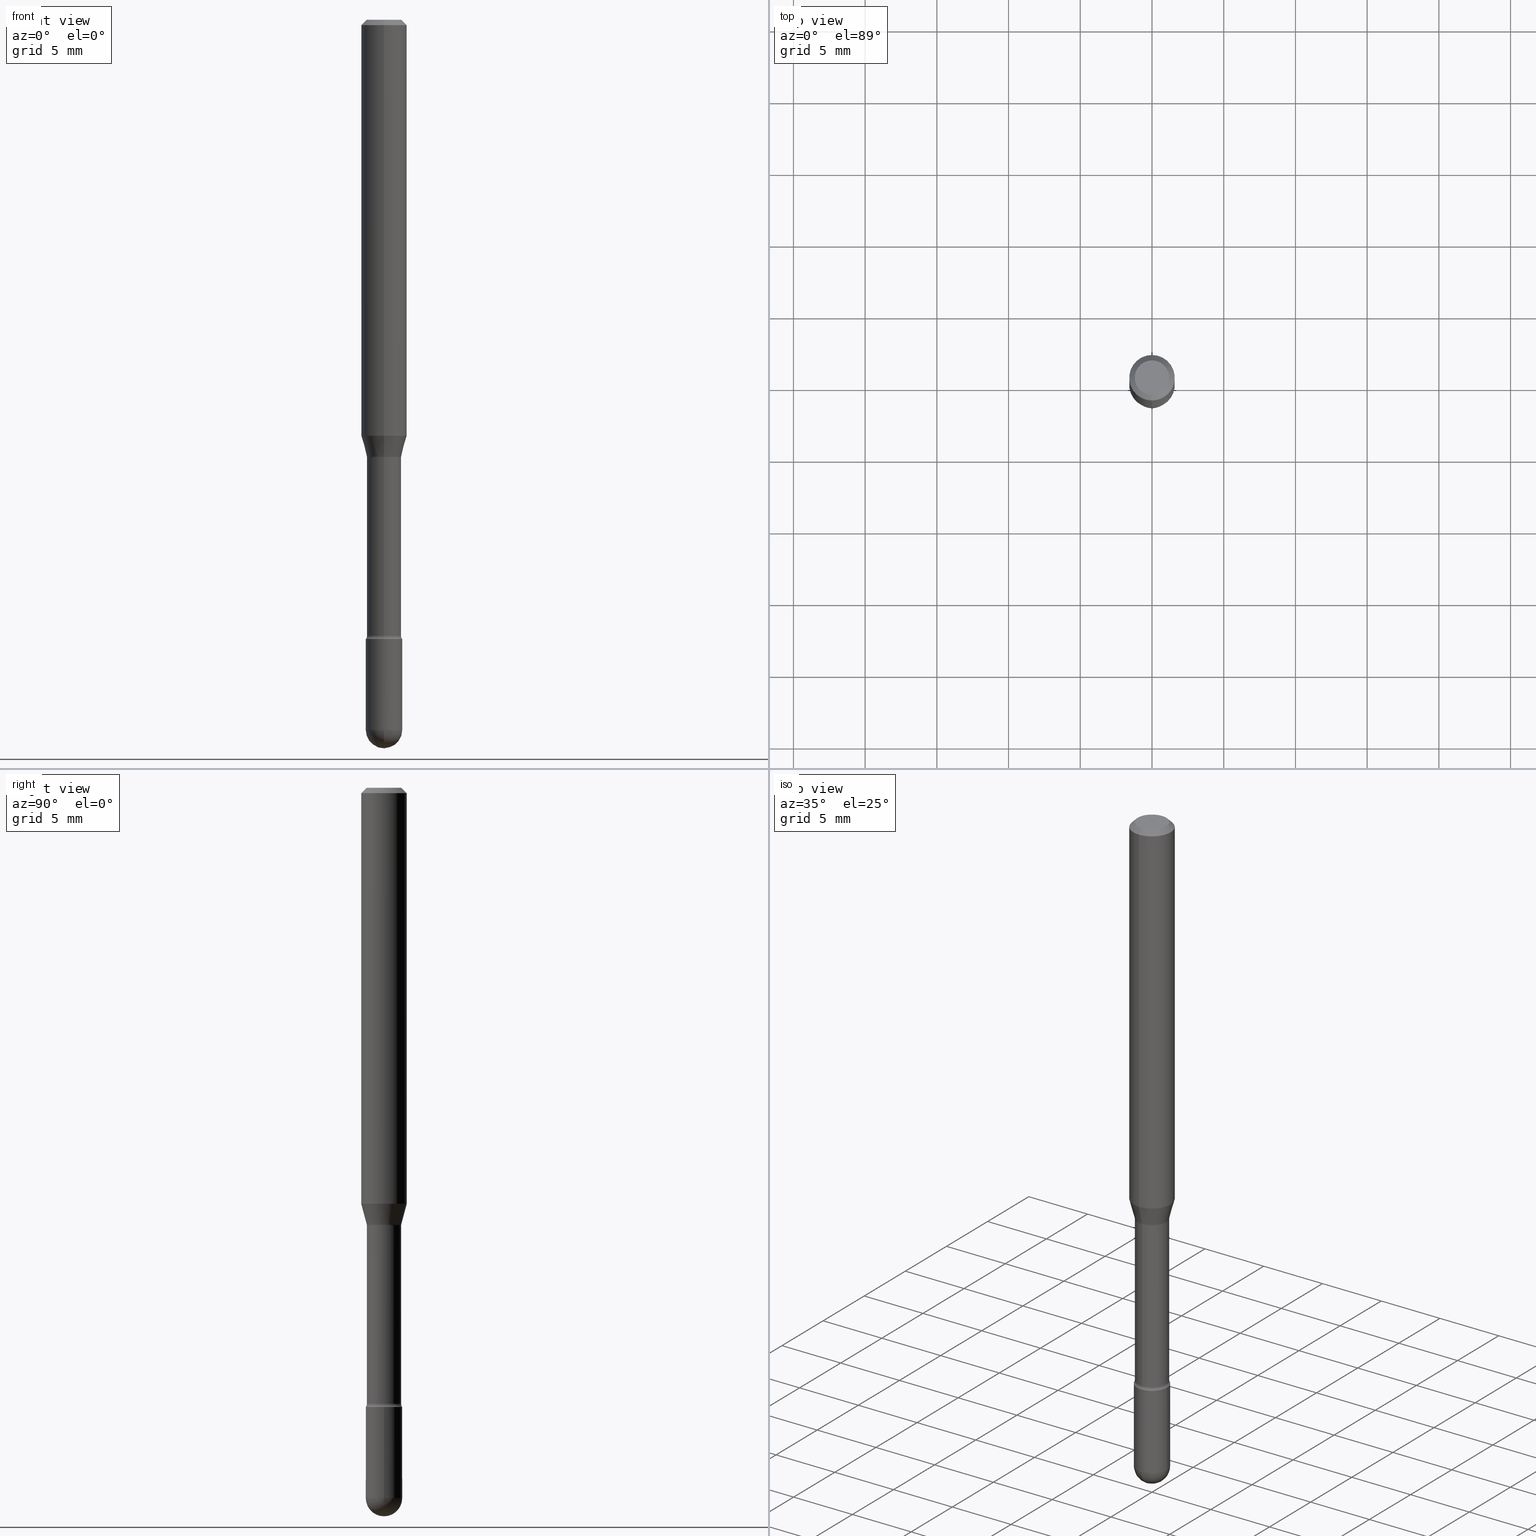
[diagram: canonical four-view strip — front | top / right | iso, engineering-drawing reading convention]
A machine part, canonical four-view strip (front | top / right | iso — engineering-drawing reading convention). The complete STEP part file that produces these views, byte-faithful:
ISO-10303-21;
HEADER;
FILE_DESCRIPTION (( 'STEP AP203' ),
    '1' );
FILE_NAME ('01606.STEP',
    '2024-04-09T20:08:53',
    ( '' ),
    ( '' ),
    'SwSTEP 2.0',
    'SolidWorks 2023',
    '' );
FILE_SCHEMA (( 'CONFIG_CONTROL_DESIGN' ));
ENDSEC;

DATA;
#1 = ADVANCED_FACE ( 'NONE', ( #421 ), #276, .T. ) ;
#2 = APPROVAL_ROLE ( '' ) ;
#3 = DIRECTION ( 'NONE',  ( -2.445378392071588483E-29, 3.491610816999798488E-15, 1.000000000000000000 ) ) ;
#4 = CARTESIAN_POINT ( 'NONE',  ( 0.04999999999999999584, -3.491481338843132862E-16, 2.438088387897967896E-30 ) ) ;
#5 = PERSON_AND_ORGANIZATION ( #324, #419 ) ;
#6 = CARTESIAN_POINT ( 'NONE',  ( -4.329436860165190307E-16, -0.06200000000000419759, -1.201974787463810479 ) ) ;
#7 = CARTESIAN_POINT ( 'NONE',  ( 3.668067588107402641E-31, -5.237416225499726599E-17, -0.01500000000000008271 ) ) ;
#8 = APPROVAL_DATE_TIME ( #436, #141 ) ;
#9 = AXIS2_PLACEMENT_3D ( 'NONE', #6, #187, #440 ) ;
#10 = DIRECTION ( 'NONE',  ( -2.445468806185136877E-29, 3.491481338843145188E-15, 1.000000000000000000 ) ) ;
#11 = DIRECTION ( 'NONE',  ( -2.445378392071587923E-29, 3.491610816999798488E-15, 1.000000000000000000 ) ) ;
#12 = AXIS2_PLACEMENT_3D ( 'NONE', #39, #134, #91 ) ;
#13 = ORIENTED_EDGE ( 'NONE', *, *, #434, .T. ) ;
#14 = DIRECTION ( 'NONE',  ( -1.807323732225327378E-15, -0.2588190451025177974, 0.9659258262890690894 ) ) ;
#15 = EDGE_LOOP ( 'NONE', ( #274, #65, #26, #201 ) ) ;
#16 = EDGE_CURVE ( 'NONE', #275, #352, #330, .T. ) ;
#17 = ORIENTED_EDGE ( 'NONE', *, *, #110, .T. ) ;
#18 = DIRECTION ( 'NONE',  ( -6.982962677686266711E-15, -1.000000000000000000, 3.491610816999798488E-15 ) ) ;
#19 = FACE_OUTER_BOUND ( 'NONE', #381, .T. ) ;
#20 = ORIENTED_EDGE ( 'NONE', *, *, #261, .F. ) ;
#21 = AXIS2_PLACEMENT_3D ( 'NONE', #29, #75, #270 ) ;
#22 = ORIENTED_EDGE ( 'NONE', *, *, #165, .F. ) ;
#23 = EDGE_CURVE ( 'NONE', #337, #410, #524, .T. ) ;
#24 = VERTEX_POINT ( 'NONE', #266 ) ;
#25 = DIRECTION ( 'NONE',  ( -2.445468806185136597E-29, 3.491481338843145583E-15, 1.000000000000000000 ) ) ;
#26 = ORIENTED_EDGE ( 'NONE', *, *, #504, .T. ) ;
#27 = CARTESIAN_POINT ( 'NONE',  ( 2.022895400566304760E-45, -2.889608581697844248E-31, -8.274088185910444383E-17 ) ) ;
#28 = CARTESIAN_POINT ( 'NONE',  ( -4.329436860165075429E-16, -0.06200000000000597394, -1.690999999999999837 ) ) ;
#29 = CARTESIAN_POINT ( 'NONE',  ( 4.405364961713038724E-16, 0.06199999999999415701, -1.691000000000000281 ) ) ;
#30 = ORIENTED_EDGE ( 'NONE', *, *, #441, .T. ) ;
#31 = DIRECTION ( 'NONE',  ( -2.445378392071588483E-29, 3.491610816999798093E-15, 1.000000000000000000 ) ) ;
#32 = CIRCLE ( 'NONE', #216, 0.04700000000000000705 ) ;
#33 = CC_DESIGN_PERSON_AND_ORGANIZATION_ASSIGNMENT ( #34, #213, ( #155 ) ) ;
#34 = PERSON_AND_ORGANIZATION ( #324, #419 ) ;
#35 = DIRECTION ( 'NONE',  ( -2.445468806185136597E-29, 3.491481338843145583E-15, 1.000000000000000000 ) ) ;
#36 = CARTESIAN_POINT ( 'NONE',  ( -3.773273898774340269E-16, -0.04749999999999999362, 8.311063194838596068E-17 ) ) ;
#37 = ADVANCED_FACE ( 'NONE', ( #454 ), #66, .T. ) ;
#38 = CARTESIAN_POINT ( 'NONE',  ( 2.929789515573588429E-29, -4.183272739006791908E-15, -1.198092501787272779 ) ) ;
#39 = CARTESIAN_POINT ( 'NONE',  ( 3.668067588107402641E-31, -5.237416225499726599E-17, -0.01500000000000008271 ) ) ;
#40 = DIRECTION ( 'NONE',  ( -6.982962677686265922E-15, -1.000000000000000000, 3.491610816999797699E-15 ) ) ;
#41 = DIRECTION ( 'NONE',  ( 1.839019923739597160E-15, 0.2588190451025245142, 0.9659258262890670910 ) ) ;
#42 = AXIS2_PLACEMENT_3D ( 'NONE', #62, #357, #233 ) ;
#43 = ORIENTED_EDGE ( 'NONE', *, *, #124, .T. ) ;
#44 = VECTOR ( 'NONE', #349, 39.37007874015748143 ) ;
#45 = CIRCLE ( 'NONE', #108, 0.05000000000000000278 ) ;
#46 = DATE_AND_TIME ( #477, #497 ) ;
#47 = ADVANCED_FACE ( 'NONE', ( #307 ), #404, .T. ) ;
#48 = APPROVAL ( #480, 'UNSPECIFIED' ) ;
#49 = LINE ( 'NONE', #560, #72 ) ;
#50 = APPROVAL_STATUS ( 'not_yet_approved' ) ;
#51 = DIRECTION ( 'NONE',  ( -2.445378392071588483E-29, 3.491610816999798093E-15, 1.000000000000000000 ) ) ;
#52 = LINE ( 'NONE', #97, #44 ) ;
#53 = AXIS2_PLACEMENT_3D ( 'NONE', #135, #31, #377 ) ;
#54 = COORDINATED_UNIVERSAL_TIME_OFFSET ( 5, 0, .BEHIND. ) ;
#55 = ADVANCED_FACE ( 'NONE', ( #534 ), #515, .T. ) ;
#56 = DIRECTION ( 'NONE',  ( 1.000000000000000000, -7.105427357601001070E-15, 4.926317094192183266E-29 ) ) ;
#57 = PLANE ( 'NONE',  #60 ) ;
#58 = CYLINDRICAL_SURFACE ( 'NONE', #73, 0.04700000000000004868 ) ;
#59 = DIRECTION ( 'NONE',  ( -2.445378392071588483E-29, 3.491610816999798093E-15, 1.000000000000000000 ) ) ;
#60 = AXIS2_PLACEMENT_3D ( 'NONE', #227, #11, #190 ) ;
#61 = ADVANCED_FACE ( 'NONE', ( #19 ), #111, .T. ) ;
#62 = CARTESIAN_POINT ( 'NONE',  ( -1.169113584055446105E-44, 1.669184350826100908E-30, 4.780733988912460139E-16 ) ) ;
#63 = SECURITY_CLASSIFICATION ( '', '', #470 ) ;
#64 = DIRECTION ( 'NONE',  ( -6.982962677686265922E-15, -1.000000000000000000, 3.491610816999796910E-15 ) ) ;
#65 = ORIENTED_EDGE ( 'NONE', *, *, #306, .T. ) ;
#66 = CYLINDRICAL_SURFACE ( 'NONE', #42, 0.06250000000000000000 ) ;
#67 = CARTESIAN_POINT ( 'NONE',  ( 4.440892098500904235E-16, 0.06249999999999600320, -1.142153212482682534 ) ) ;
#68 = ADVANCED_FACE ( 'NONE', ( #194 ), #57, .F. ) ;
#69 = CARTESIAN_POINT ( 'NONE',  ( -3.317683261006717573E-16, -0.04751111260566816263, -1.198092501787272779 ) ) ;
#70 = UNCERTAINTY_MEASURE_WITH_UNIT (LENGTH_MEASURE( 1.000000000000000082E-05 ), #548, 'distance_accuracy_value', 'NONE');
#71 = EDGE_LOOP ( 'NONE', ( #313, #279, #130, #285 ) ) ;
#72 = VECTOR ( 'NONE', #483, 39.37007874015748143 ) ;
#73 = AXIS2_PLACEMENT_3D ( 'NONE', #492, #228, #64 ) ;
#74 = ORIENTED_EDGE ( 'NONE', *, *, #378, .F. ) ;
#75 = DIRECTION ( 'NONE',  ( 1.000000000000000000, -7.105427357601001070E-15, 4.926317094192183266E-29 ) ) ;
#76 = VERTEX_POINT ( 'NONE', #354 ) ;
#77 = DIRECTION ( 'NONE',  ( 1.000000000000000000, -6.982962677686275388E-15, 0.000000000000000000 ) ) ;
#78 = ORIENTED_EDGE ( 'NONE', *, *, #165, .T. ) ;
#79 = DIRECTION ( 'NONE',  ( -1.000000000000000000, 6.982962677686265133E-15, -4.883557194083112340E-29 ) ) ;
#80 = ORIENTED_EDGE ( 'NONE', *, *, #535, .T. ) ;
#81 = FACE_OUTER_BOUND ( 'NONE', #15, .T. ) ;
#82 = EDGE_CURVE ( 'NONE', #156, #445, #229, .T. ) ;
#83 = DIRECTION ( 'NONE',  ( -6.982962677686265133E-15, -1.000000000000000000, 5.812442539711187545E-15 ) ) ;
#84 = AXIS2_PLACEMENT_3D ( 'NONE', #113, #304, #272 ) ;
#85 = ORIENTED_EDGE ( 'NONE', *, *, #249, .F. ) ;
#86 = AXIS2_PLACEMENT_3D ( 'NONE', #398, #389, #95 ) ;
#87 = ORIENTED_EDGE ( 'NONE', *, *, #220, .T. ) ;
#88 = APPLICATION_PROTOCOL_DEFINITION ( 'international standard', 'config_control_design', 1994, #468 ) ;
#89 = MANIFOLD_SOLID_BREP ( 'Body-Move/Copy2[1]', #173 ) ;
#90 = CARTESIAN_POINT ( 'NONE',  ( 2.929789515573588429E-29, -4.183272739006791908E-15, -1.198092501787272779 ) ) ;
#91 = DIRECTION ( 'NONE',  ( 6.982962677686265922E-15, 1.000000000000000000, -3.483106191921935554E-15 ) ) ;
#92 = FACE_OUTER_BOUND ( 'NONE', #321, .T. ) ;
#93 = CARTESIAN_POINT ( 'NONE',  ( 2.792996786240300833E-29, -3.987954511375601864E-15, -1.142153212482682312 ) ) ;
#94 = APPROVAL_STATUS ( 'not_yet_approved' ) ;
#95 = DIRECTION ( 'NONE',  ( -6.982962677686265133E-15, -1.000000000000000000, 5.812442539711187545E-15 ) ) ;
#96 = LOCAL_TIME ( 16, 8, 53.00000000000000000, #54 ) ;
#97 = CARTESIAN_POINT ( 'NONE',  ( 4.364351673553919652E-16, 0.06249999999999995143, -0.01500000000000030129 ) ) ;
#98 = APPROVAL_DATE_TIME ( #508, #202 ) ;
#99 = CARTESIAN_POINT ( 'NONE',  ( 4.893075528093221385E-29, -6.979901060688422629E-15, -2.000000000000000000 ) ) ;
#100 = CYLINDRICAL_SURFACE ( 'NONE', #164, 0.04700000000000004868 ) ;
#101 = DIRECTION ( 'NONE',  ( 1.000000000000000000, -6.982962677686265922E-15, 4.876176775795935793E-29 ) ) ;
#102 = CARTESIAN_POINT ( 'NONE',  ( -4.287811248607203282E-16, -0.06250000000000005551, -0.01499999999999986587 ) ) ;
#103 = FACE_OUTER_BOUND ( 'NONE', #458, .T. ) ;
#104 = EDGE_CURVE ( 'NONE', #494, #366, #487, .T. ) ;
#105 = AXIS2_PLACEMENT_3D ( 'NONE', #136, #552, #170 ) ;
#106 = CIRCLE ( 'NONE', #526, 0.04999999999999999584 ) ;
#107 = CARTESIAN_POINT ( 'NONE',  ( -4.364351673553916201E-16, -0.06250000000000000000, 6.962990749537333701E-16 ) ) ;
#108 = AXIS2_PLACEMENT_3D ( 'NONE', #379, #550, #328 ) ;
#109 = CARTESIAN_POINT ( 'NONE',  ( 2.792996786240300833E-29, -3.987954511375601864E-15, -1.142153212482682312 ) ) ;
#110 = EDGE_CURVE ( 'NONE', #335, #457, #32, .T. ) ;
#111 = SPHERICAL_SURFACE ( 'NONE', #317, 0.05000000000000000278 ) ;
#112 = TOROIDAL_SURFACE ( 'NONE', #138, 0.06199999999999999956, 0.01499999999999998557 ) ;
#113 = CARTESIAN_POINT ( 'NONE',  ( 0.000000000000000000, 0.000000000000000000, 0.000000000000000000 ) ) ;
#114 = DIRECTION ( 'NONE',  ( -6.982962677686265133E-15, -1.000000000000000000, 2.874956872025123732E-15 ) ) ;
#115 = ORIENTED_EDGE ( 'NONE', *, *, #200, .T. ) ;
#116 = EDGE_LOOP ( 'NONE', ( #166, #159, #43, #80 ) ) ;
#117 = FACE_OUTER_BOUND ( 'NONE', #250, .T. ) ;
#118 = CIRCLE ( 'NONE', #163, 0.01499999999999999424 ) ;
#119 = CIRCLE ( 'NONE', #451, 0.04751111260566398542 ) ;
#120 = CARTESIAN_POINT ( 'NONE',  ( 4.135287751259066496E-29, -5.904094943983759361E-15, -1.691000000000000059 ) ) ;
#121 = ORIENTED_EDGE ( 'NONE', *, *, #325, .T. ) ;
#122 = DIRECTION ( 'NONE',  ( 1.000000000000000000, -6.982962677686275388E-15, 0.000000000000000000 ) ) ;
#123 = CARTESIAN_POINT ( 'NONE',  ( 0.04999999999999999584, -6.721101577273053797E-15, -1.949999999999999734 ) ) ;
#124 = EDGE_CURVE ( 'NONE', #539, #356, #52, .T. ) ;
#125 = ORIENTED_EDGE ( 'NONE', *, *, #200, .F. ) ;
#126 = CARTESIAN_POINT ( 'NONE',  ( 4.157296970514731878E-29, -5.935518276033347214E-15, -1.699999999999999956 ) ) ;
#127 = LINE ( 'NONE', #557, #554 ) ;
#128 = DIRECTION ( 'NONE',  ( -2.445378392071588483E-29, 3.491610816999798093E-15, 1.000000000000000000 ) ) ;
#129 = VECTOR ( 'NONE', #224, 39.37007874015748143 ) ;
#130 = ORIENTED_EDGE ( 'NONE', *, *, #238, .F. ) ;
#131 = LENGTH_MEASURE_WITH_UNIT ( LENGTH_MEASURE( 0.02539999999999999897 ), #327 );
#132 = CARTESIAN_POINT ( 'NONE',  ( 3.339550858072473347E-16, 0.04700000000000004868, 3.139676904922554404E-16 ) ) ;
#133 = EDGE_CURVE ( 'NONE', #450, #214, #547, .T. ) ;
#134 = DIRECTION ( 'NONE',  ( 2.445378392071588483E-29, -3.491610816999798093E-15, -1.000000000000000000 ) ) ;
#135 = CARTESIAN_POINT ( 'NONE',  ( 2.022895400566304760E-45, -2.889608581697844248E-31, -8.274088185910444383E-17 ) ) ;
#136 = CARTESIAN_POINT ( 'NONE',  ( 4.157296970514731878E-29, -5.935518276033347214E-15, -1.699999999999999956 ) ) ;
#137 = CLOSED_SHELL ( 'NONE', ( #384, #396, #355, #55, #37, #1, #182, #416, #559, #291, #68, #348, #463, #195 ) ) ;
#138 = AXIS2_PLACEMENT_3D ( 'NONE', #414, #316, #365 ) ;
#139 = CIRCLE ( 'NONE', #302, 0.05000000000000000278 ) ;
#140 = FACE_OUTER_BOUND ( 'NONE', #407, .T. ) ;
#141 = APPROVAL ( #50, 'UNSPECIFIED' ) ;
#142 = EDGE_CURVE ( 'NONE', #308, #356, #49, .T. ) ;
#143 = DIRECTION ( 'NONE',  ( -2.445468806185136597E-29, 3.491481338843145583E-15, 1.000000000000000000 ) ) ;
#144 = DIRECTION ( 'NONE',  ( -2.445378392071588483E-29, 3.491610816999798093E-15, 1.000000000000000000 ) ) ;
#145 = PLANE ( 'NONE',  #517 ) ;
#146 = DIRECTION ( 'NONE',  ( -2.445468806185136877E-29, 3.491481338843145188E-15, 1.000000000000000000 ) ) ;
#147 = AXIS2_PLACEMENT_3D ( 'NONE', #126, #287, #387 ) ;
#148 = SHAPE_DEFINITION_REPRESENTATION ( #502, #562 ) ;
#149 = CARTESIAN_POINT ( 'NONE',  ( -3.491481338842715752E-16, -0.05000000000000592165, -1.699999999999999734 ) ) ;
#150 = CARTESIAN_POINT ( 'NONE',  ( 3.446132268436902621E-16, 0.04699999999999417838, -1.691000000000000281 ) ) ;
#151 = ORIENTED_EDGE ( 'NONE', *, *, #257, .T. ) ;
#152 = ORIENTED_EDGE ( 'NONE', *, *, #271, .F. ) ;
#153 = CIRCLE ( 'NONE', #333, 0.04749999999999999362 ) ;
#154 = CIRCLE ( 'NONE', #86, 0.04700000000000009032 ) ;
#155 = PRODUCT_DEFINITION ( 'UNKNOWN', '', #217, #362 ) ;
#156 = VERTEX_POINT ( 'NONE', #99 ) ;
#157 = CARTESIAN_POINT ( 'NONE',  ( 4.768664172061015467E-29, -6.808388610744132920E-15, -1.949999999999999734 ) ) ;
#158 = DIRECTION ( 'NONE',  ( -6.982962677686265133E-15, -1.000000000000000000, 2.874956872025123732E-15 ) ) ;
#159 = ORIENTED_EDGE ( 'NONE', *, *, #340, .F. ) ;
#160 = DIRECTION ( 'NONE',  ( -2.445378392071588483E-29, 3.491610816999798093E-15, 1.000000000000000000 ) ) ;
#161 = ORIENTED_EDGE ( 'NONE', *, *, #133, .T. ) ;
#162 = DIRECTION ( 'NONE',  ( -2.445378392071588483E-29, 3.491610816999798093E-15, 1.000000000000000000 ) ) ;
#163 = AXIS2_PLACEMENT_3D ( 'NONE', #394, #56, #347 ) ;
#164 = AXIS2_PLACEMENT_3D ( 'NONE', #223, #489, #297 ) ;
#165 = EDGE_CURVE ( 'NONE', #76, #275, #432, .T. ) ;
#166 = ORIENTED_EDGE ( 'NONE', *, *, #104, .F. ) ;
#167 = CYLINDRICAL_SURFACE ( 'NONE', #429, 0.06250000000000000000 ) ;
#168 = APPROVAL_DATE_TIME ( #292, #48 ) ;
#169 = ORIENTED_EDGE ( 'NONE', *, *, #225, .F. ) ;
#170 = DIRECTION ( 'NONE',  ( 1.000000000000000000, -6.982962677686274599E-15, 0.000000000000000000 ) ) ;
#171 = DIRECTION ( 'NONE',  ( -2.445378392071588483E-29, 3.491610816999798488E-15, 1.000000000000000000 ) ) ;
#172 = EDGE_CURVE ( 'NONE', #410, #308, #204, .T. ) ;
#173 = CLOSED_SHELL ( 'NONE', ( #47, #61, #529, #188, #361 ) ) ;
#174 = VECTOR ( 'NONE', #3, 39.37007874015748143 ) ;
#175 = TOROIDAL_SURFACE ( 'NONE', #408, 0.06199999999999999956, 0.01499999999999998557 ) ;
#176 = PERSON_AND_ORGANIZATION_ROLE ( 'design_owner' ) ;
#177 = DIRECTION ( 'NONE',  ( 1.000000000000000000, -6.982962677686265922E-15, 4.876176775795936353E-29 ) ) ;
#178 = CARTESIAN_POINT ( 'NONE',  ( 4.768664172061015467E-29, -6.808388610744132920E-15, -1.949999999999999734 ) ) ;
#179 = APPROVAL_ROLE ( '' ) ;
#180 = DIRECTION ( 'NONE',  ( -2.438088387897960049E-29, 3.491481338843145188E-15, 1.000000000000000000 ) ) ;
#181 = CIRCLE ( 'NONE', #481, 0.04700000000000000705 ) ;
#182 = ADVANCED_FACE ( 'NONE', ( #530 ), #397, .T. ) ;
#183 = CC_DESIGN_APPROVAL ( #48, ( #155 ) ) ;
#184 = CALENDAR_DATE ( 2024, 9, 4 ) ;
#185 = DIRECTION ( 'NONE',  ( -6.982962677686265922E-15, -1.000000000000000000, 2.906221269855598900E-15 ) ) ;
#186 = DIRECTION ( 'NONE',  ( -2.445378392071588483E-29, 3.491610816999798093E-15, 1.000000000000000000 ) ) ;
#187 = DIRECTION ( 'NONE',  ( -1.000000000000000000, 6.982962677686265922E-15, -4.883557194083112340E-29 ) ) ;
#188 = ADVANCED_FACE ( 'NONE', ( #117 ), #282, .T. ) ;
#189 = AXIS2_PLACEMENT_3D ( 'NONE', #428, #558, #289 ) ;
#190 = DIRECTION ( 'NONE',  ( -6.982962677686265922E-15, -1.000000000000000000, 3.491610816999798488E-15 ) ) ;
#191 = ORIENTED_EDGE ( 'NONE', *, *, #23, .F. ) ;
#192 = DIRECTION ( 'NONE',  ( 2.445378392071588483E-29, -3.491610816999798093E-15, -1.000000000000000000 ) ) ;
#193 = FACE_OUTER_BOUND ( 'NONE', #390, .T. ) ;
#194 = FACE_OUTER_BOUND ( 'NONE', #312, .T. ) ;
#195 = ADVANCED_FACE ( 'NONE', ( #239 ), #112, .F. ) ;
#196 = CIRCLE ( 'NONE', #392, 0.04999999999999999584 ) ;
#197 = DIRECTION ( 'NONE',  ( -2.445378392071588483E-29, 3.491610816999798093E-15, 1.000000000000000000 ) ) ;
#198 = EDGE_LOOP ( 'NONE', ( #13, #247 ) ) ;
#199 = DIRECTION ( 'NONE',  ( -6.982962677686266711E-15, -1.000000000000000000, 0.000000000000000000 ) ) ;
#200 = EDGE_CURVE ( 'NONE', #214, #76, #236, .T. ) ;
#201 = ORIENTED_EDGE ( 'NONE', *, *, #220, .F. ) ;
#202 = APPROVAL ( #94, 'UNSPECIFIED' ) ;
#203 = PERSON_AND_ORGANIZATION_ROLE ( 'creator' ) ;
#204 = CIRCLE ( 'NONE', #296, 0.06250000000000000000 ) ;
#205 = CIRCLE ( 'NONE', #230, 0.04700000000000009032 ) ;
#206 = ORIENTED_EDGE ( 'NONE', *, *, #16, .F. ) ;
#207 = CARTESIAN_POINT ( 'NONE',  ( 3.552713678800914786E-16, 0.04999999999999404227, -1.700000000000000178 ) ) ;
#208 = ORIENTED_EDGE ( 'NONE', *, *, #225, .T. ) ;
#209 = DIRECTION ( 'NONE',  ( -6.982962677686265133E-15, -1.000000000000000000, 2.874956872025123732E-15 ) ) ;
#210 = CC_DESIGN_PERSON_AND_ORGANIZATION_ASSIGNMENT ( #555, #176, ( #513 ) ) ;
#211 = ORIENTED_EDGE ( 'NONE', *, *, #393, .T. ) ;
#212 = DIRECTION ( 'NONE',  ( -2.445378392071588483E-29, 3.491610816999798093E-15, 1.000000000000000000 ) ) ;
#213 = PERSON_AND_ORGANIZATION_ROLE ( 'creator' ) ;
#214 = VERTEX_POINT ( 'NONE', #545 ) ;
#215 = CYLINDRICAL_SURFACE ( 'NONE', #537, 0.04999999999999999584 ) ;
#216 = AXIS2_PLACEMENT_3D ( 'NONE', #479, #186, #435 ) ;
#217 = PRODUCT_DEFINITION_FORMATION_WITH_SPECIFIED_SOURCE ( 'ANY', '', #513, .NOT_KNOWN. ) ;
#218 = DATE_TIME_ROLE ( 'creation_date' ) ;
#219 = EDGE_LOOP ( 'NONE', ( #240, #540, #169, #20 ) ) ;
#220 = EDGE_CURVE ( 'NONE', #24, #460, #262, .T. ) ;
#221 = DIRECTION ( 'NONE',  ( -7.105427357601001070E-15, -1.000000000000000000, 0.000000000000000000 ) ) ;
#222 = TOROIDAL_SURFACE ( 'NONE', #426, 0.06200000000000006894, 0.01499999999999998036 ) ;
#223 = CARTESIAN_POINT ( 'NONE',  ( -1.169113584055446105E-44, 1.669184350826100908E-30, 4.780733988912460139E-16 ) ) ;
#224 = DIRECTION ( 'NONE',  ( -4.851104656540964275E-15, -0.7071067811865500152, -0.7071067811865450192 ) ) ;
#225 = EDGE_CURVE ( 'NONE', #366, #356, #418, .T. ) ;
#226 = CARTESIAN_POINT ( 'NONE',  ( 2.929789515573588429E-29, -4.183272739006791908E-15, -1.198092501787272779 ) ) ;
#227 = CARTESIAN_POINT ( 'NONE',  ( 3.491481338843548493E-16, 0.04999999999999407002, -1.700000000000000178 ) ) ;
#228 = DIRECTION ( 'NONE',  ( -2.445378392071588483E-29, 3.491610816999798093E-15, 1.000000000000000000 ) ) ;
#229 = CIRCLE ( 'NONE', #301, 0.05000000000000000278 ) ;
#230 = AXIS2_PLACEMENT_3D ( 'NONE', #288, #472, #83 ) ;
#231 = DIRECTION ( 'NONE',  ( -1.000000000000000000, 6.982962677686265133E-15, -4.883557194083112340E-29 ) ) ;
#232 = EDGE_LOOP ( 'NONE', ( #311, #411, #452, #367 ) ) ;
#233 = DIRECTION ( 'NONE',  ( -6.982962677686265922E-15, -1.000000000000000000, 3.491610816999797699E-15 ) ) ;
#234 = EDGE_CURVE ( 'NONE', #445, #450, #106, .T. ) ;
#235 = DIRECTION ( 'NONE',  ( -2.445378392071588483E-29, 3.491610816999798093E-15, 1.000000000000000000 ) ) ;
#236 = CIRCLE ( 'NONE', #344, 0.04999999999999999584 ) ;
#237 = ORIENTED_EDGE ( 'NONE', *, *, #234, .T. ) ;
#238 = EDGE_CURVE ( 'NONE', #457, #335, #181, .T. ) ;
#239 = FACE_OUTER_BOUND ( 'NONE', #415, .T. ) ;
#240 = ORIENTED_EDGE ( 'NONE', *, *, #172, .T. ) ;
#241 = CARTESIAN_POINT ( 'NONE',  ( 4.768664172061015467E-29, -6.808388610744132920E-15, -1.949999999999999734 ) ) ;
#242 = ORIENTED_EDGE ( 'NONE', *, *, #82, .T. ) ;
#243 = CARTESIAN_POINT ( 'NONE',  ( 4.157143266521700029E-29, -5.935738388899656562E-15, -1.699999999999999956 ) ) ;
#244 = PERSON_AND_ORGANIZATION ( #324, #419 ) ;
#245 = CIRCLE ( 'NONE', #189, 0.05000000000000000278 ) ;
#246 = APPROVAL_PERSON_ORGANIZATION ( #293, #48, #179 ) ;
#247 = ORIENTED_EDGE ( 'NONE', *, *, #16, .T. ) ;
#248 = CARTESIAN_POINT ( 'NONE',  ( 4.135287751259066496E-29, -5.904094943983759361E-15, -1.691000000000000059 ) ) ;
#249 = EDGE_CURVE ( 'NONE', #320, #335, #118, .T. ) ;
#250 = EDGE_LOOP ( 'NONE', ( #417, #267, #369, #359 ) ) ;
#251 = ORIENTED_EDGE ( 'NONE', *, *, #535, .F. ) ;
#252 = APPROVAL_ROLE ( '' ) ;
#253 = DIRECTION ( 'NONE',  ( 6.982962677686265922E-15, 1.000000000000000000, -3.491610816999798488E-15 ) ) ;
#254 = AXIS2_PLACEMENT_3D ( 'NONE', #248, #466, #519 ) ;
#255 = CIRCLE ( 'NONE', #474, 0.06250000000000000000 ) ;
#256 =( NAMED_UNIT ( * ) PLANE_ANGLE_UNIT ( ) SI_UNIT ( $, .RADIAN. ) );
#257 = EDGE_CURVE ( 'NONE', #337, #457, #563, .T. ) ;
#258 = PERSON_AND_ORGANIZATION_ROLE ( 'classification_officer' ) ;
#259 = LINE ( 'NONE', #132, #473 ) ;
#260 = AXIS2_PLACEMENT_3D ( 'NONE', #38, #341, #209 ) ;
#261 = EDGE_CURVE ( 'NONE', #410, #366, #490, .T. ) ;
#262 = CIRCLE ( 'NONE', #553, 0.01499999999999997689 ) ;
#263 = PRODUCT_RELATED_PRODUCT_CATEGORY ( 'detail', '', ( #513 ) ) ;
#264 = DIRECTION ( 'NONE',  ( -2.445378392071588483E-29, 3.491610816999798093E-15, 1.000000000000000000 ) ) ;
#265 = DIRECTION ( 'NONE',  ( -2.445378392071588483E-29, 3.491610816999798093E-15, 1.000000000000000000 ) ) ;
#266 = CARTESIAN_POINT ( 'NONE',  ( -3.281992458512137296E-16, -0.04700000000000599532, -1.690999999999999837 ) ) ;
#267 = ORIENTED_EDGE ( 'NONE', *, *, #294, .T. ) ;
#268 = AXIS2_PLACEMENT_3D ( 'NONE', #493, #192, #443 ) ;
#269 = AXIS2_PLACEMENT_3D ( 'NONE', #422, #510, #380 ) ;
#270 = DIRECTION ( 'NONE',  ( 7.105427357601006592E-15, 1.000000000000000000, 0.000000000000000000 ) ) ;
#271 = EDGE_CURVE ( 'NONE', #467, #335, #259, .T. ) ;
#272 = DIRECTION ( 'NONE',  ( 1.000000000000000000, -6.982962677686265922E-15, 4.876176775795936353E-29 ) ) ;
#273 = EDGE_LOOP ( 'NONE', ( #152, #506, #211, #413 ) ) ;
#274 = ORIENTED_EDGE ( 'NONE', *, *, #499, .F. ) ;
#275 = VERTEX_POINT ( 'NONE', #343 ) ;
#276 = CONICAL_SURFACE ( 'NONE', #260, 0.04751111260566398542, 0.2617993877991498519 ) ;
#277 = VECTOR ( 'NONE', #146, 39.37007874015748143 ) ;
#278 = CARTESIAN_POINT ( 'NONE',  ( 3.339550858072887499E-16, 0.04699999999999580208, -1.201974787463810701 ) ) ;
#279 = ORIENTED_EDGE ( 'NONE', *, *, #271, .T. ) ;
#280 = CC_DESIGN_PERSON_AND_ORGANIZATION_ASSIGNMENT ( #431, #203, ( #217 ) ) ;
#281 = CIRCLE ( 'NONE', #375, 0.06250000000000000000 ) ;
#282 = SPHERICAL_SURFACE ( 'NONE', #351, 0.05000000000000000278 ) ;
#283 = ORIENTED_EDGE ( 'NONE', *, *, #434, .F. ) ;
#284 = DIRECTION ( 'NONE',  ( -6.982962677686265133E-15, -1.000000000000000000, 5.463695987328526437E-15 ) ) ;
#285 = ORIENTED_EDGE ( 'NONE', *, *, #393, .F. ) ;
#286 = APPLICATION_CONTEXT ( 'configuration controlled 3d designs of mechanical parts and assemblies' ) ;
#287 = DIRECTION ( 'NONE',  ( -2.445468806185136597E-29, 3.491481338843145583E-15, 1.000000000000000000 ) ) ;
#288 = CARTESIAN_POINT ( 'NONE',  ( 4.135134860993056477E-29, -5.904313891546658026E-15, -1.691000000000000059 ) ) ;
#289 = DIRECTION ( 'NONE',  ( 6.982962677686265133E-15, 1.000000000000000000, 0.000000000000000000 ) ) ;
#290 = CIRCLE ( 'NONE', #53, 0.04749999999999999362 ) ;
#291 = ADVANCED_FACE ( 'NONE', ( #140 ), #485, .F. ) ;
#292 = DATE_AND_TIME ( #522, #459 ) ;
#293 = PERSON_AND_ORGANIZATION ( #324, #419 ) ;
#294 = EDGE_CURVE ( 'NONE', #156, #214, #245, .T. ) ;
#295 = COORDINATED_UNIVERSAL_TIME_OFFSET ( 5, 0, .BEHIND. ) ;
#296 = AXIS2_PLACEMENT_3D ( 'NONE', #109, #264, #491 ) ;
#297 = DIRECTION ( 'NONE',  ( -6.982962677686265922E-15, -1.000000000000000000, 3.491610816999796910E-15 ) ) ;
#298 = FACE_OUTER_BOUND ( 'NONE', #71, .T. ) ;
#299 = CC_DESIGN_DATE_AND_TIME_ASSIGNMENT ( #488, #300, ( #63 ) ) ;
#300 = DATE_TIME_ROLE ( 'classification_date' ) ;
#301 = AXIS2_PLACEMENT_3D ( 'NONE', #438, #368, #221 ) ;
#302 = AXIS2_PLACEMENT_3D ( 'NONE', #243, #128, #284 ) ;
#303 = CARTESIAN_POINT ( 'NONE',  ( -0.04999999999999999584, 3.552713678800500634E-16, -2.459467545127452961E-30 ) ) ;
#304 = DIRECTION ( 'NONE',  ( -2.445468806185136597E-29, 3.491481338843145583E-15, 1.000000000000000000 ) ) ;
#305 = ORIENTED_EDGE ( 'NONE', *, *, #456, .T. ) ;
#306 = EDGE_CURVE ( 'NONE', #467, #500, #531, .T. ) ;
#307 = FACE_OUTER_BOUND ( 'NONE', #448, .T. ) ;
#308 = VERTEX_POINT ( 'NONE', #67 ) ;
#309 = CIRCLE ( 'NONE', #360, 0.04751111260566398542 ) ;
#310 = CARTESIAN_POINT ( 'NONE',  ( 3.908379845742332554E-16, 0.04751111260565980127, -1.198092501787273001 ) ) ;
#311 = ORIENTED_EDGE ( 'NONE', *, *, #542, .F. ) ;
#312 = EDGE_LOOP ( 'NONE', ( #516, #536 ) ) ;
#313 = ORIENTED_EDGE ( 'NONE', *, *, #486, .T. ) ;
#314 = EDGE_CURVE ( 'NONE', #337, #320, #309, .T. ) ;
#315 = ORIENTED_EDGE ( 'NONE', *, *, #238, .T. ) ;
#316 = DIRECTION ( 'NONE',  ( -2.445378392071588483E-29, 3.491610816999798093E-15, 1.000000000000000000 ) ) ;
#317 = AXIS2_PLACEMENT_3D ( 'NONE', #446, #231, #358 ) ;
#318 = APPROVAL_PERSON_ORGANIZATION ( #423, #202, #252 ) ;
#319 = DIRECTION ( 'NONE',  ( -6.982962677686265922E-15, -1.000000000000000000, 3.483106191921935554E-15 ) ) ;
#320 = VERTEX_POINT ( 'NONE', #310 ) ;
#321 = EDGE_LOOP ( 'NONE', ( #22, #121, #237, #556, #206 ) ) ;
#322 = MECHANICAL_CONTEXT ( 'NONE', #286, 'mechanical' ) ;
#323 = ORIENTED_EDGE ( 'NONE', *, *, #314, .F. ) ;
#324 = PERSON ( 'UNSPECIFIED', 'UNSPECIFIED', 'UNSPECIFIED', ('UNSPECIFIED'), ('UNSPECIFIED'), ('UNSPECIFIED') ) ;
#325 = EDGE_CURVE ( 'NONE', #76, #445, #196, .T. ) ;
#326 = CARTESIAN_POINT ( 'NONE',  ( -3.552713678800023866E-16, -0.05000000000000680983, -1.949999999999999512 ) ) ;
#327 =( LENGTH_UNIT ( ) NAMED_UNIT ( * ) SI_UNIT ( $, .METRE. ) );
#328 = DIRECTION ( 'NONE',  ( -6.982962677686265133E-15, -1.000000000000000000, 5.463695987328526437E-15 ) ) ;
#329 = ORIENTED_EDGE ( 'NONE', *, *, #261, .T. ) ;
#330 = CIRCLE ( 'NONE', #105, 0.05000000000000000278 ) ;
#331 = APPLICATION_PROTOCOL_DEFINITION ( 'international standard', 'config_control_design', 1994, #286 ) ;
#332 = CARTESIAN_POINT ( 'NONE',  ( 3.316907271900976096E-16, 0.04749999999999999362, 3.181474470858047299E-17 ) ) ;
#333 = AXIS2_PLACEMENT_3D ( 'NONE', #27, #197, #18 ) ;
#334 = CIRCLE ( 'NONE', #147, 0.05000000000000000278 ) ;
#335 = VERTEX_POINT ( 'NONE', #278 ) ;
#336 = DIRECTION ( 'NONE',  ( -2.445378392071588483E-29, 3.491610816999798093E-15, 1.000000000000000000 ) ) ;
#337 = VERTEX_POINT ( 'NONE', #69 ) ;
#338 = DIRECTION ( 'NONE',  ( -2.445378392071588483E-29, 3.491610816999798093E-15, 1.000000000000000000 ) ) ;
#339 = FACE_OUTER_BOUND ( 'NONE', #116, .T. ) ;
#340 = EDGE_CURVE ( 'NONE', #539, #494, #153, .T. ) ;
#341 = DIRECTION ( 'NONE',  ( -2.445378392071588483E-29, 3.491610816999798093E-15, 1.000000000000000000 ) ) ;
#342 = CARTESIAN_POINT ( 'NONE',  ( 3.840629472727447874E-16, 0.04749999999999999362, -2.485923956665948360E-16 ) ) ;
#343 = CARTESIAN_POINT ( 'NONE',  ( -0.05000000000000000278, -6.016682075508689264E-15, -1.699999999999999956 ) ) ;
#344 = AXIS2_PLACEMENT_3D ( 'NONE', #241, #501, #77 ) ;
#345 = CONICAL_SURFACE ( 'NONE', #12, 0.06250000000000000000, 0.7853981633974483900 ) ;
#346 = CALENDAR_DATE ( 2024, 9, 4 ) ;
#347 = DIRECTION ( 'NONE',  ( 7.105427357600993970E-15, 1.000000000000000000, 0.000000000000000000 ) ) ;
#348 = ADVANCED_FACE ( 'NONE', ( #193 ), #222, .F. ) ;
#349 = DIRECTION ( 'NONE',  ( 4.937700262164548042E-15, 0.7071067811865451302, -0.7071067811865499042 ) ) ;
#350 = DIRECTION ( 'NONE',  ( -2.445378392071588483E-29, 3.491610816999798488E-15, 1.000000000000000000 ) ) ;
#351 = AXIS2_PLACEMENT_3D ( 'NONE', #541, #79, #461 ) ;
#352 = VERTEX_POINT ( 'NONE', #475 ) ;
#353 = CC_DESIGN_APPROVAL ( #202, ( #217 ) ) ;
#354 = CARTESIAN_POINT ( 'NONE',  ( -0.04999999999999999584, -6.016682075508689264E-15, -1.949999999999999734 ) ) ;
#355 = ADVANCED_FACE ( 'NONE', ( #81 ), #382, .F. ) ;
#356 = VERTEX_POINT ( 'NONE', #478 ) ;
#357 = DIRECTION ( 'NONE',  ( -2.445378392071588483E-29, 3.491610816999798093E-15, 1.000000000000000000 ) ) ;
#358 = DIRECTION ( 'NONE',  ( 6.982962677686265133E-15, 1.000000000000000000, -5.463695987328525648E-15 ) ) ;
#359 = ORIENTED_EDGE ( 'NONE', *, *, #234, .F. ) ;
#360 = AXIS2_PLACEMENT_3D ( 'NONE', #453, #235, #114 ) ;
#361 = ADVANCED_FACE ( 'NONE', ( #92 ), #215, .T. ) ;
#362 = DESIGN_CONTEXT ( 'detailed design', #468, 'design' ) ;
#363 = DIRECTION ( 'NONE',  ( 1.000000000000000000, -6.982962677686275388E-15, 0.000000000000000000 ) ) ;
#364 = ORIENTED_EDGE ( 'NONE', *, *, #476, .F. ) ;
#365 = DIRECTION ( 'NONE',  ( -6.982962677686265922E-15, -1.000000000000000000, 3.491610816999798093E-15 ) ) ;
#366 = VERTEX_POINT ( 'NONE', #520 ) ;
#367 = ORIENTED_EDGE ( 'NONE', *, *, #441, .F. ) ;
#368 = DIRECTION ( 'NONE',  ( -1.000000000000000000, 7.105427357601001070E-15, -4.926315508542082329E-29 ) ) ;
#369 = ORIENTED_EDGE ( 'NONE', *, *, #133, .F. ) ;
#370 = CARTESIAN_POINT ( 'NONE',  ( 3.668067588107402641E-31, -5.237416225499726599E-17, -0.01500000000000008271 ) ) ;
#371 = ORIENTED_EDGE ( 'NONE', *, *, #257, .F. ) ;
#372 = AXIS2_PLACEMENT_3D ( 'NONE', #178, #143, #521 ) ;
#373 = ORIENTED_EDGE ( 'NONE', *, *, #306, .F. ) ;
#374 = ORIENTED_EDGE ( 'NONE', *, *, #249, .T. ) ;
#375 = AXIS2_PLACEMENT_3D ( 'NONE', #93, #338, #469 ) ;
#376 = PERSON_AND_ORGANIZATION_ROLE ( 'design_supplier' ) ;
#377 = DIRECTION ( 'NONE',  ( -6.982962677686266711E-15, -1.000000000000000000, 3.491610816999798488E-15 ) ) ;
#378 = EDGE_CURVE ( 'NONE', #494, #539, #290, .T. ) ;
#379 = CARTESIAN_POINT ( 'NONE',  ( 4.157143266521700029E-29, -5.935738388899656562E-15, -1.699999999999999956 ) ) ;
#380 = DIRECTION ( 'NONE',  ( 1.000000000000000000, 0.000000000000000000, 0.000000000000000000 ) ) ;
#381 = EDGE_LOOP ( 'NONE', ( #401, #242, #464, #125 ) ) ;
#382 = TOROIDAL_SURFACE ( 'NONE', #254, 0.06200000000000006894, 0.01499999999999998036 ) ;
#383 =( NAMED_UNIT ( * ) SI_UNIT ( $, .STERADIAN. ) SOLID_ANGLE_UNIT ( ) );
#384 = ADVANCED_FACE ( 'NONE', ( #103 ), #175, .F. ) ;
#385 = CARTESIAN_POINT ( 'NONE',  ( 0.000000000000000000, 0.000000000000000000, 0.000000000000000000 ) ) ;
#386 = APPROVAL_PERSON_ORGANIZATION ( #5, #141, #2 ) ;
#387 = DIRECTION ( 'NONE',  ( 1.000000000000000000, -6.982962677686274599E-15, 0.000000000000000000 ) ) ;
#388 = CALENDAR_DATE ( 2024, 9, 4 ) ;
#389 = DIRECTION ( 'NONE',  ( -2.445378392071588483E-29, 3.491610816999798093E-15, 1.000000000000000000 ) ) ;
#390 = EDGE_LOOP ( 'NONE', ( #373, #543, #87, #305 ) ) ;
#391 = DIRECTION ( 'NONE',  ( -6.982962677686265922E-15, -1.000000000000000000, 3.491610816999798093E-15 ) ) ;
#392 = AXIS2_PLACEMENT_3D ( 'NONE', #157, #402, #363 ) ;
#393 = EDGE_CURVE ( 'NONE', #24, #457, #433, .T. ) ;
#394 = CARTESIAN_POINT ( 'NONE',  ( 4.405364961712914478E-16, 0.06199999999999579459, -1.201974787463810923 ) ) ;
#395 = CARTESIAN_POINT ( 'NONE',  ( 4.157296970514731878E-29, -5.935518276033347214E-15, -1.699999999999999956 ) ) ;
#396 = ADVANCED_FACE ( 'NONE', ( #298 ), #100, .T. ) ;
#397 = CONICAL_SURFACE ( 'NONE', #439, 0.04751111260566398542, 0.2617993877991498519 ) ;
#398 = CARTESIAN_POINT ( 'NONE',  ( 4.135134860993056477E-29, -5.904313891546658026E-15, -1.691000000000000059 ) ) ;
#399 = CC_DESIGN_APPROVAL ( #141, ( #63 ) ) ;
#400 = ORIENTED_EDGE ( 'NONE', *, *, #542, .T. ) ;
#401 = ORIENTED_EDGE ( 'NONE', *, *, #294, .F. ) ;
#402 = DIRECTION ( 'NONE',  ( -2.445468806185136597E-29, 3.491481338843145583E-15, 1.000000000000000000 ) ) ;
#403 = ORIENTED_EDGE ( 'NONE', *, *, #124, .F. ) ;
#404 = CYLINDRICAL_SURFACE ( 'NONE', #84, 0.04999999999999999584 ) ;
#405 = EDGE_LOOP ( 'NONE', ( #74, #505, #208, #403 ) ) ;
#406 = VECTOR ( 'NONE', #14, 39.37007874015748143 ) ;
#407 = EDGE_LOOP ( 'NONE', ( #544, #546 ) ) ;
#408 = AXIS2_PLACEMENT_3D ( 'NONE', #437, #51, #391 ) ;
#409 = LOCAL_TIME ( 16, 8, 53.00000000000000000, #564 ) ;
#410 = VERTEX_POINT ( 'NONE', #484 ) ;
#411 = ORIENTED_EDGE ( 'NONE', *, *, #476, .T. ) ;
#412 = DIRECTION ( 'NONE',  ( -1.000000000000000000, 6.982962677686265922E-15, -4.883557194083112340E-29 ) ) ;
#413 = ORIENTED_EDGE ( 'NONE', *, *, #110, .F. ) ;
#414 = CARTESIAN_POINT ( 'NONE',  ( 2.939391848563758392E-29, -4.196672540189851161E-15, -1.201974787463810701 ) ) ;
#415 = EDGE_LOOP ( 'NONE', ( #85, #323, #151, #315 ) ) ;
#416 = ADVANCED_FACE ( 'NONE', ( #565 ), #167, .T. ) ;
#417 = ORIENTED_EDGE ( 'NONE', *, *, #82, .F. ) ;
#418 = CIRCLE ( 'NONE', #447, 0.06250000000000000000 ) ;
#419 = ORGANIZATION ( 'UNSPECIFIED', 'UNSPECIFIED', '' ) ;
#420 = PERSON_AND_ORGANIZATION ( #324, #419 ) ;
#421 = FACE_OUTER_BOUND ( 'NONE', #512, .T. ) ;
#422 = CARTESIAN_POINT ( 'NONE',  ( 0.000000000000000000, 0.000000000000000000, 0.000000000000000000 ) ) ;
#423 = PERSON_AND_ORGANIZATION ( #324, #419 ) ;
#424 = DIRECTION ( 'NONE',  ( 2.445378392071587923E-29, -3.491610816999798488E-15, -1.000000000000000000 ) ) ;
#425 = CC_DESIGN_PERSON_AND_ORGANIZATION_ASSIGNMENT ( #244, #376, ( #217 ) ) ;
#426 = AXIS2_PLACEMENT_3D ( 'NONE', #120, #59, #471 ) ;
#427 = COORDINATED_UNIVERSAL_TIME_OFFSET ( 5, 0, .BEHIND. ) ;
#428 = CARTESIAN_POINT ( 'NONE',  ( 4.768664172061016027E-29, -6.808388610744133709E-15, -1.949999999999999956 ) ) ;
#429 = AXIS2_PLACEMENT_3D ( 'NONE', #549, #212, #40 ) ;
#430 = ORIENTED_EDGE ( 'NONE', *, *, #525, .F. ) ;
#431 = PERSON_AND_ORGANIZATION ( #324, #419 ) ;
#432 = LINE ( 'NONE', #303, #277 ) ;
#433 = LINE ( 'NONE', #527, #174 ) ;
#434 = EDGE_CURVE ( 'NONE', #352, #275, #334, .T. ) ;
#435 = DIRECTION ( 'NONE',  ( -6.982962677686265922E-15, -1.000000000000000000, 2.906221269855598900E-15 ) ) ;
#436 = DATE_AND_TIME ( #184, #409 ) ;
#437 = CARTESIAN_POINT ( 'NONE',  ( 2.939391848563758392E-29, -4.196672540189851161E-15, -1.201974787463810701 ) ) ;
#438 = CARTESIAN_POINT ( 'NONE',  ( 4.768664172061016027E-29, -6.808388610744133709E-15, -1.949999999999999956 ) ) ;
#439 = AXIS2_PLACEMENT_3D ( 'NONE', #90, #336, #158 ) ;
#440 = DIRECTION ( 'NONE',  ( -6.982962677686262766E-15, -1.000000000000000000, 0.000000000000000000 ) ) ;
#441 = EDGE_CURVE ( 'NONE', #308, #410, #281, .T. ) ;
#442 = CC_DESIGN_PERSON_AND_ORGANIZATION_ASSIGNMENT ( #420, #258, ( #63 ) ) ;
#443 = DIRECTION ( 'NONE',  ( 6.982962677686265922E-15, 1.000000000000000000, -3.483106191921935554E-15 ) ) ;
#444 = DIRECTION ( 'NONE',  ( -6.982962677686265133E-15, -1.000000000000000000, 2.874956872025123732E-15 ) ) ;
#445 = VERTEX_POINT ( 'NONE', #326 ) ;
#446 = CARTESIAN_POINT ( 'NONE',  ( 4.768664172061016027E-29, -6.808388610744133709E-15, -1.949999999999999956 ) ) ;
#447 = AXIS2_PLACEMENT_3D ( 'NONE', #370, #162, #319 ) ;
#448 = EDGE_LOOP ( 'NONE', ( #115, #78, #283, #430, #161 ) ) ;
#449 = FACE_OUTER_BOUND ( 'NONE', #273, .T. ) ;
#450 = VERTEX_POINT ( 'NONE', #123 ) ;
#451 = AXIS2_PLACEMENT_3D ( 'NONE', #226, #265, #444 ) ;
#452 = ORIENTED_EDGE ( 'NONE', *, *, #23, .T. ) ;
#453 = CARTESIAN_POINT ( 'NONE',  ( 2.929789515573588429E-29, -4.183272739006791908E-15, -1.198092501787272779 ) ) ;
#454 = FACE_OUTER_BOUND ( 'NONE', #219, .T. ) ;
#455 = CC_DESIGN_DATE_AND_TIME_ASSIGNMENT ( #46, #218, ( #155 ) ) ;
#456 = EDGE_CURVE ( 'NONE', #460, #500, #139, .T. ) ;
#457 = VERTEX_POINT ( 'NONE', #533 ) ;
#458 = EDGE_LOOP ( 'NONE', ( #364, #374, #17, #371 ) ) ;
#459 = LOCAL_TIME ( 16, 8, 53.00000000000000000, #518 ) ;
#460 = VERTEX_POINT ( 'NONE', #149 ) ;
#461 = DIRECTION ( 'NONE',  ( 6.982962677686265133E-15, 1.000000000000000000, -5.463695987328525648E-15 ) ) ;
#462 = MANIFOLD_SOLID_BREP ( 'Body-Move/Copy2[2]', #137 ) ;
#463 = ADVANCED_FACE ( 'NONE', ( #449 ), #58, .T. ) ;
#464 = ORIENTED_EDGE ( 'NONE', *, *, #325, .F. ) ;
#465 = CARTESIAN_POINT ( 'NONE',  ( 2.939283173078842436E-29, -4.196828169669674292E-15, -1.201974787463810479 ) ) ;
#466 = DIRECTION ( 'NONE',  ( -2.445378392071588483E-29, 3.491610816999798093E-15, 1.000000000000000000 ) ) ;
#467 = VERTEX_POINT ( 'NONE', #150 ) ;
#468 = APPLICATION_CONTEXT ( 'configuration controlled 3d designs of mechanical parts and assemblies' ) ;
#469 = DIRECTION ( 'NONE',  ( -6.982962677686265922E-15, -1.000000000000000000, 4.370956789862821150E-15 ) ) ;
#470 = SECURITY_CLASSIFICATION_LEVEL ( 'unclassified' ) ;
#471 = DIRECTION ( 'NONE',  ( -6.982962677686265922E-15, -1.000000000000000000, 3.491610816999798093E-15 ) ) ;
#472 = DIRECTION ( 'NONE',  ( -2.445378392071588483E-29, 3.491610816999798093E-15, 1.000000000000000000 ) ) ;
#473 = VECTOR ( 'NONE', #171, 39.37007874015748143 ) ;
#474 = AXIS2_PLACEMENT_3D ( 'NONE', #7, #160, #551 ) ;
#475 = CARTESIAN_POINT ( 'NONE',  ( 0.05000000000000000278, -6.284666409917660550E-15, -1.699999999999999956 ) ) ;
#476 = EDGE_CURVE ( 'NONE', #320, #337, #119, .T. ) ;
#477 = CALENDAR_DATE ( 2024, 9, 4 ) ;
#478 = CARTESIAN_POINT ( 'NONE',  ( 4.440892098500906207E-16, 0.06249999999999993755, -0.01500000000000030129 ) ) ;
#479 = CARTESIAN_POINT ( 'NONE',  ( 2.939283173078842436E-29, -4.196828169669674292E-15, -1.201974787463810479 ) ) ;
#480 = APPROVAL_STATUS ( 'not_yet_approved' ) ;
#481 = AXIS2_PLACEMENT_3D ( 'NONE', #465, #144, #185 ) ;
#482 = CC_DESIGN_SECURITY_CLASSIFICATION ( #63, ( #217 ) ) ;
#483 = DIRECTION ( 'NONE',  ( -2.445378392071588483E-29, 3.491610816999798488E-15, 1.000000000000000000 ) ) ;
#484 = CARTESIAN_POINT ( 'NONE',  ( -4.364351673553637635E-16, -0.06250000000000399680, -1.142153212482682090 ) ) ;
#485 = PLANE ( 'NONE',  #503 ) ;
#486 = EDGE_CURVE ( 'NONE', #24, #467, #154, .T. ) ;
#487 = LINE ( 'NONE', #102, #129 ) ;
#488 = DATE_AND_TIME ( #346, #96 ) ;
#489 = DIRECTION ( 'NONE',  ( -2.445378392071588483E-29, 3.491610816999798093E-15, 1.000000000000000000 ) ) ;
#490 = LINE ( 'NONE', #107, #496 ) ;
#491 = DIRECTION ( 'NONE',  ( -6.982962677686265922E-15, -1.000000000000000000, 4.370956789862821150E-15 ) ) ;
#492 = CARTESIAN_POINT ( 'NONE',  ( -1.169113584055446105E-44, 1.669184350826100908E-30, 4.780733988912460139E-16 ) ) ;
#493 = CARTESIAN_POINT ( 'NONE',  ( 3.668067588107402641E-31, -5.237416225499726599E-17, -0.01500000000000008271 ) ) ;
#494 = VERTEX_POINT ( 'NONE', #36 ) ;
#495 = CARTESIAN_POINT ( 'NONE',  ( -3.317683261006717573E-16, -0.04751111260566816263, -1.198092501787272779 ) ) ;
#496 = VECTOR ( 'NONE', #350, 39.37007874015748143 ) ;
#497 = LOCAL_TIME ( 16, 8, 53.00000000000000000, #295 ) ;
#498 = ORIENTED_EDGE ( 'NONE', *, *, #172, .F. ) ;
#499 = EDGE_CURVE ( 'NONE', #467, #24, #205, .T. ) ;
#500 = VERTEX_POINT ( 'NONE', #207 ) ;
#501 = DIRECTION ( 'NONE',  ( -2.445468806185136597E-29, 3.491481338843145583E-15, 1.000000000000000000 ) ) ;
#502 = PRODUCT_DEFINITION_SHAPE ( 'NONE', 'NONE',  #155 ) ;
#503 = AXIS2_PLACEMENT_3D ( 'NONE', #332, #424, #253 ) ;
#504 = EDGE_CURVE ( 'NONE', #500, #460, #45, .T. ) ;
#505 = ORIENTED_EDGE ( 'NONE', *, *, #104, .T. ) ;
#506 = ORIENTED_EDGE ( 'NONE', *, *, #499, .T. ) ;
#507 = CARTESIAN_POINT ( 'NONE',  ( 4.768664172061015467E-29, -6.808388610744132920E-15, -1.949999999999999734 ) ) ;
#508 = DATE_AND_TIME ( #388, #566 ) ;
#509 = EDGE_LOOP ( 'NONE', ( #538, #30, #329, #251 ) ) ;
#510 = DIRECTION ( 'NONE',  ( 0.000000000000000000, 0.000000000000000000, 1.000000000000000000 ) ) ;
#511 = LINE ( 'NONE', #4, #532 ) ;
#512 = EDGE_LOOP ( 'NONE', ( #514, #400, #498, #191 ) ) ;
#513 = PRODUCT ( '01606', '01606', '', ( #322 ) ) ;
#514 = ORIENTED_EDGE ( 'NONE', *, *, #314, .T. ) ;
#515 = CONICAL_SURFACE ( 'NONE', #268, 0.06250000000000000000, 0.7853981633974483900 ) ;
#516 = ORIENTED_EDGE ( 'NONE', *, *, #456, .F. ) ;
#517 = AXIS2_PLACEMENT_3D ( 'NONE', #395, #180, #101 ) ;
#518 = COORDINATED_UNIVERSAL_TIME_OFFSET ( 5, 0, .BEHIND. ) ;
#519 = DIRECTION ( 'NONE',  ( -6.982962677686265922E-15, -1.000000000000000000, 3.491610816999798093E-15 ) ) ;
#520 = CARTESIAN_POINT ( 'NONE',  ( -4.364351673553912750E-16, -0.06250000000000005551, -0.01499999999999986587 ) ) ;
#521 = DIRECTION ( 'NONE',  ( 1.000000000000000000, -6.982962677686275388E-15, 0.000000000000000000 ) ) ;
#522 = CALENDAR_DATE ( 2024, 9, 4 ) ;
#523 = DIMENSIONAL_EXPONENTS ( 1.000000000000000000, 0.000000000000000000, 0.000000000000000000, 0.000000000000000000, 0.000000000000000000, 0.000000000000000000, 0.000000000000000000 ) ;
#524 = LINE ( 'NONE', #495, #406 ) ;
#525 = EDGE_CURVE ( 'NONE', #450, #352, #511, .T. ) ;
#526 = AXIS2_PLACEMENT_3D ( 'NONE', #507, #25, #122 ) ;
#527 = CARTESIAN_POINT ( 'NONE',  ( -3.281992458512548490E-16, -0.04700000000000004868, 6.421791072902367353E-16 ) ) ;
#528 =( GEOMETRIC_REPRESENTATION_CONTEXT ( 3 ) GLOBAL_UNCERTAINTY_ASSIGNED_CONTEXT ( ( #70 ) ) GLOBAL_UNIT_ASSIGNED_CONTEXT ( ( #548, #256, #383 ) ) REPRESENTATION_CONTEXT ( 'NONE', 'WORKASPACE' ) );
#529 = ADVANCED_FACE ( 'NONE', ( #561 ), #145, .T. ) ;
#530 = FACE_OUTER_BOUND ( 'NONE', #232, .T. ) ;
#531 = CIRCLE ( 'NONE', #21, 0.01499999999999997689 ) ;
#532 = VECTOR ( 'NONE', #10, 39.37007874015748143 ) ;
#533 = CARTESIAN_POINT ( 'NONE',  ( -3.281992458512251188E-16, -0.04700000000000420508, -1.201974787463810479 ) ) ;
#534 = FACE_OUTER_BOUND ( 'NONE', #405, .T. ) ;
#535 = EDGE_CURVE ( 'NONE', #356, #366, #255, .T. ) ;
#536 = ORIENTED_EDGE ( 'NONE', *, *, #504, .F. ) ;
#537 = AXIS2_PLACEMENT_3D ( 'NONE', #385, #35, #177 ) ;
#538 = ORIENTED_EDGE ( 'NONE', *, *, #142, .F. ) ;
#539 = VERTEX_POINT ( 'NONE', #342 ) ;
#540 = ORIENTED_EDGE ( 'NONE', *, *, #142, .T. ) ;
#541 = CARTESIAN_POINT ( 'NONE',  ( 4.768664172061016027E-29, -6.808388610744133709E-15, -1.949999999999999956 ) ) ;
#542 = EDGE_CURVE ( 'NONE', #320, #308, #127, .T. ) ;
#543 = ORIENTED_EDGE ( 'NONE', *, *, #486, .F. ) ;
#544 = ORIENTED_EDGE ( 'NONE', *, *, #340, .T. ) ;
#545 = CARTESIAN_POINT ( 'NONE',  ( 3.491481338843609137E-16, 0.04999999999999318184, -1.949999999999999956 ) ) ;
#546 = ORIENTED_EDGE ( 'NONE', *, *, #378, .T. ) ;
#547 = CIRCLE ( 'NONE', #372, 0.04999999999999999584 ) ;
#548 =( CONVERSION_BASED_UNIT ( 'INCH', #131 ) LENGTH_UNIT ( ) NAMED_UNIT ( #523 ) );
#549 = CARTESIAN_POINT ( 'NONE',  ( -1.169113584055446105E-44, 1.669184350826100908E-30, 4.780733988912460139E-16 ) ) ;
#550 = DIRECTION ( 'NONE',  ( -2.445378392071588483E-29, 3.491610816999798093E-15, 1.000000000000000000 ) ) ;
#551 = DIRECTION ( 'NONE',  ( -6.982962677686265922E-15, -1.000000000000000000, 3.483106191921935554E-15 ) ) ;
#552 = DIRECTION ( 'NONE',  ( -2.445468806185136597E-29, 3.491481338843145583E-15, 1.000000000000000000 ) ) ;
#553 = AXIS2_PLACEMENT_3D ( 'NONE', #28, #412, #199 ) ;
#554 = VECTOR ( 'NONE', #41, 39.37007874015748854 ) ;
#555 = PERSON_AND_ORGANIZATION ( #324, #419 ) ;
#556 = ORIENTED_EDGE ( 'NONE', *, *, #525, .T. ) ;
#557 = CARTESIAN_POINT ( 'NONE',  ( 3.375867592983759393E-16, 0.04751111260565980127, -1.198092501787273001 ) ) ;
#558 = DIRECTION ( 'NONE',  ( 1.000000000000000000, -6.982962677686265922E-15, 4.883557194083112340E-29 ) ) ;
#559 = ADVANCED_FACE ( 'NONE', ( #339 ), #345, .T. ) ;
#560 = CARTESIAN_POINT ( 'NONE',  ( 4.440892098500625669E-16, 0.06250000000000000000, 2.598477228287587070E-16 ) ) ;
#561 = FACE_OUTER_BOUND ( 'NONE', #198, .T. ) ;
#562 = ADVANCED_BREP_SHAPE_REPRESENTATION ( '01606', ( #89, #462, #269 ), #528 ) ;
#563 = CIRCLE ( 'NONE', #9, 0.01499999999999999424 ) ;
#564 = COORDINATED_UNIVERSAL_TIME_OFFSET ( 5, 0, .BEHIND. ) ;
#565 = FACE_OUTER_BOUND ( 'NONE', #509, .T. ) ;
#566 = LOCAL_TIME ( 16, 8, 53.00000000000000000, #427 ) ;
ENDSEC;
END-ISO-10303-21;
